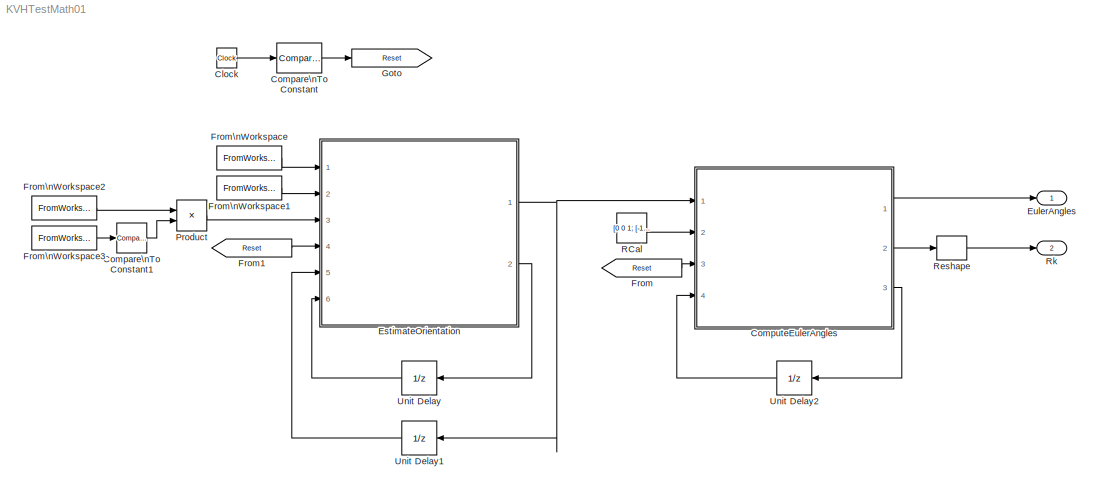
MODEL KVHTestMath01
KIND model
CONFIG InitFcn = T = (0:length(DeltaAngle)-1)'*0.001;\nTDeltaAngle = [T DeltaAngle];\nTAcceleration = [T Acceleration];\nTStatus = [T Status];\nTValid = [T Valid];\n
CONFIG StopFcn = ZYX = yout(:,1:3);\nR=yout(:,4:12);\n\nfigure(1);\nplot(T,ZYX*180/pi); hold on;\nplot(T,Status, 'm'); hold off;\n
BLOCK [Clock] Clock
  SID = 15
BLOCK [Reference] Compare\nTo Constant  REF=simulink/Logic and Bit\nOperations/Compare\nTo Constant
  OutDataTypeStr = uint8
  Ports = [1, 1]
  SID = 17
  SourceBlock = simulink/Logic and Bit\nOperations/Compare\nTo Constant
  SourceType = Compare To Constant
  ZeroCross = on
  const = 0.2
  relop = <
BLOCK [Reference] Compare\nTo Constant1  REF=simulink/Logic and Bit\nOperations/Compare\nTo Constant
  OutDataTypeStr = uint8
  Ports = [1, 1]
  SID = 23
  SourceBlock = simulink/Logic and Bit\nOperations/Compare\nTo Constant
  SourceType = Compare To Constant
  ZeroCross = on
  const = 1
  relop = ==
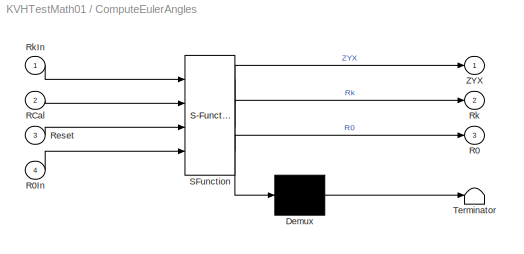
BLOCK [SubSystem] ComputeEulerAngles
  ErrorFcn = Stateflow.Translate.translate
  FunctionWithSeparateData = off
  MaskDescription = Embedded MATLAB block
  MaskDisplay = bgColor = Simulink.Root.ColorString2Rgb(get_param(gcbh, 'BackgroundColor')); image(imread('private/eml_membrane_16.png','png','BackgroundColor',bgColor(1:3)),'center'); disp([10 10 'fcn']);
  MaskHideContents = off
  MaskIconFrame = on
  MaskIconOpaque = off
  MaskIconRotate = none
  MaskIconUnits = normalized
  MaskPortRotate = default
  MaskSelfModifiable = on
  MaskType = Stateflow
  MinAlgLoopOccurrences = off
  Opaque = off
  PermitHierarchicalResolution = ExplicitOnly
  Ports = [4, 3]
  PropExecContextOutsideSubsystem = off
  RTWSystemCode = Auto
  RequestExecContextInheritance = off
  SFBlockType = MATLAB Function
  SID = 1
  TreatAsAtomicUnit = on
BLOCK [Demux] ComputeEulerAngles/ Demux 
  Outputs = 1
  Ports = [1, 1]
  SID = 1::20
BLOCK [S-Function] ComputeEulerAngles/ SFunction 
  EnableBusSupport = on
  FunctionName = sf_sfun
  PortCounts = [4 4]
  Ports = [4, 4]
  SID = 1::19
  Tag = Stateflow S-Function KVHTestMath01 1
BLOCK [Terminator] ComputeEulerAngles/ Terminator 
  SID = 1::22
BLOCK [Outport] ComputeEulerAngles/R0
  IconDisplay = Port number
  Port = 3
  SID = 1::32
BLOCK [Inport] ComputeEulerAngles/R0In
  IconDisplay = Port number
  Port = 4
  SID = 1::30
BLOCK [Inport] ComputeEulerAngles/RCal
  IconDisplay = Port number
  Port = 2
  SID = 1::1
BLOCK [Inport] ComputeEulerAngles/Reset
  IconDisplay = Port number
  Port = 3
  SID = 1::24
BLOCK [Outport] ComputeEulerAngles/Rk
  IconDisplay = Port number
  Port = 2
  SID = 1::34
BLOCK [Inport] ComputeEulerAngles/RkIn
  IconDisplay = Port number
  SID = 1::33
BLOCK [Outport] ComputeEulerAngles/ZYX
  IconDisplay = Port number
  SID = 1::27
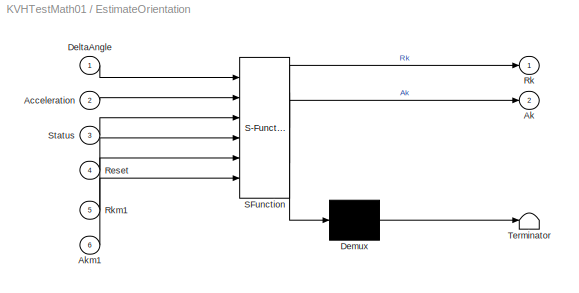
BLOCK [SubSystem] EstimateOrientation
  ErrorFcn = Stateflow.Translate.translate
  FunctionWithSeparateData = off
  MaskDescription = Embedded MATLAB block
  MaskDisplay = bgColor = Simulink.Root.ColorString2Rgb(get_param(gcbh, 'BackgroundColor')); image(imread('private/eml_membrane_16.png','png','BackgroundColor',bgColor(1:3)),'center'); disp([10 10 'fcn']);
  MaskHideContents = off
  MaskIconFrame = on
  MaskIconOpaque = off
  MaskIconRotate = none
  MaskIconUnits = normalized
  MaskPortRotate = default
  MaskSelfModifiable = on
  MaskType = Stateflow
  MinAlgLoopOccurrences = off
  Opaque = off
  PermitHierarchicalResolution = ExplicitOnly
  Ports = [6, 2]
  PropExecContextOutsideSubsystem = off
  RTWSystemCode = Auto
  RequestExecContextInheritance = off
  SFBlockType = MATLAB Function
  SID = 2
  TreatAsAtomicUnit = on
BLOCK [Demux] EstimateOrientation/ Demux 
  Outputs = 1
  Ports = [1, 1]
  SID = 2::20
BLOCK [S-Function] EstimateOrientation/ SFunction 
  EnableBusSupport = on
  FunctionName = sf_sfun
  PortCounts = [6 3]
  Ports = [6, 3]
  SID = 2::19
  Tag = Stateflow S-Function KVHTestMath01 2
BLOCK [Terminator] EstimateOrientation/ Terminator 
  SID = 2::22
BLOCK [Inport] EstimateOrientation/Acceleration
  IconDisplay = Port number
  Port = 2
  SID = 2::1
BLOCK [Outport] EstimateOrientation/Ak
  IconDisplay = Port number
  Port = 2
  SID = 2::27
BLOCK [Inport] EstimateOrientation/Akm1
  IconDisplay = Port number
  Port = 6
  SID = 2::26
BLOCK [Inport] EstimateOrientation/DeltaAngle
  IconDisplay = Port number
  SID = 2::23
BLOCK [Inport] EstimateOrientation/Reset
  IconDisplay = Port number
  Port = 4
  SID = 2::24
BLOCK [Outport] EstimateOrientation/Rk
  IconDisplay = Port number
  SID = 2::5
BLOCK [Inport] EstimateOrientation/Rkm1
  IconDisplay = Port number
  Port = 5
  SID = 2::25
BLOCK [Inport] EstimateOrientation/Status
  IconDisplay = Port number
  Port = 3
  SID = 2::28
BLOCK [Outport] EulerAngles
  IconDisplay = Port number
  SID = 7
BLOCK [From] From
  GotoTag = Reset
  SID = 9
BLOCK [From] From1
  GotoTag = Reset
  SID = 11
BLOCK [FromWorkspace] From\nWorkspace
  Interpolate = off
  OutputAfterFinalValue = Holding final value
  SID = 12
  SampleTime = 0
  VariableName = TDeltaAngle
  ZeroCross = on
BLOCK [FromWorkspace] From\nWorkspace1
  Interpolate = off
  OutputAfterFinalValue = Holding final value
  SID = 13
  SampleTime = 0
  VariableName = TAcceleration
  ZeroCross = on
BLOCK [FromWorkspace] From\nWorkspace2
  Interpolate = off
  OutputAfterFinalValue = Holding final value
  SID = 18
  SampleTime = 0
  VariableName = TStatus
  ZeroCross = on
BLOCK [FromWorkspace] From\nWorkspace3
  Interpolate = off
  OutputAfterFinalValue = Holding final value
  SID = 21
  SampleTime = 0
  VariableName = TValid
  ZeroCross = on
BLOCK [Goto] Goto
  GotoTag = Reset
  SID = 10
BLOCK [Product] Product
  InputSameDT = off
  OutDataTypeStr = Inherit: Inherit via internal rule
  Ports = [2, 1]
  SID = 22
  SaturateOnIntegerOverflow = off
BLOCK [Constant] RCal
  SID = 3
  Value = [0 0 1; [-1 -1; 1 -1]/sqrt(2) [0; 0]]'
BLOCK [Reshape] Reshape
  Ports = [1, 1]
  SID = 20
BLOCK [Outport] Rk
  IconDisplay = Port number
  Port = 2
  SID = 8
BLOCK [UnitDelay] Unit Delay
  InputProcessing = Elements as channels (sample based)
  SID = 4
  SampleTime = -1
  X0 = [0; 0; 0]
BLOCK [UnitDelay] Unit Delay1
  InputProcessing = Elements as channels (sample based)
  SID = 5
  SampleTime = -1
  X0 = zeros(3,3)
BLOCK [UnitDelay] Unit Delay2
  InputProcessing = Elements as channels (sample based)
  SID = 6
  SampleTime = -1
  X0 = zeros(3,3)
LINE Clock:1 -> Compare\nTo Constant:1
LINE Compare\nTo Constant1:1 -> Product:2
LINE Compare\nTo Constant:1 -> Goto:1
LINE ComputeEulerAngles/ Demux :1 -> ComputeEulerAngles/ Terminator :1
LINE ComputeEulerAngles/ SFunction :1 -> ComputeEulerAngles/ Demux :1
LINE ComputeEulerAngles/ SFunction :2 -> ComputeEulerAngles/ZYX:1
LINE ComputeEulerAngles/ SFunction :3 -> ComputeEulerAngles/Rk:1
LINE ComputeEulerAngles/ SFunction :4 -> ComputeEulerAngles/R0:1
LINE ComputeEulerAngles/R0In:1 -> ComputeEulerAngles/ SFunction :4
LINE ComputeEulerAngles/RCal:1 -> ComputeEulerAngles/ SFunction :2
LINE ComputeEulerAngles/Reset:1 -> ComputeEulerAngles/ SFunction :3
LINE ComputeEulerAngles/RkIn:1 -> ComputeEulerAngles/ SFunction :1
LINE ComputeEulerAngles:1 -> EulerAngles:1
LINE ComputeEulerAngles:2 -> Reshape:1
LINE ComputeEulerAngles:3 -> Unit Delay2:1
LINE EstimateOrientation/ Demux :1 -> EstimateOrientation/ Terminator :1
LINE EstimateOrientation/ SFunction :1 -> EstimateOrientation/ Demux :1
LINE EstimateOrientation/ SFunction :2 -> EstimateOrientation/Rk:1
LINE EstimateOrientation/ SFunction :3 -> EstimateOrientation/Ak:1
LINE EstimateOrientation/Acceleration:1 -> EstimateOrientation/ SFunction :2
LINE EstimateOrientation/Akm1:1 -> EstimateOrientation/ SFunction :6
LINE EstimateOrientation/DeltaAngle:1 -> EstimateOrientation/ SFunction :1
LINE EstimateOrientation/Reset:1 -> EstimateOrientation/ SFunction :4
LINE EstimateOrientation/Rkm1:1 -> EstimateOrientation/ SFunction :5
LINE EstimateOrientation/Status:1 -> EstimateOrientation/ SFunction :3
NET EstimateOrientation:1 -> ComputeEulerAngles:1, Unit Delay1:1
LINE EstimateOrientation:2 -> Unit Delay:1
LINE From1:1 -> EstimateOrientation:4
LINE From:1 -> ComputeEulerAngles:3
LINE From\nWorkspace1:1 -> EstimateOrientation:2
LINE From\nWorkspace2:1 -> Product:1
LINE From\nWorkspace3:1 -> Compare\nTo Constant1:1
LINE From\nWorkspace:1 -> EstimateOrientation:1
LINE Product:1 -> EstimateOrientation:3
LINE RCal:1 -> ComputeEulerAngles:2
LINE Reshape:1 -> Rk:1
LINE Unit Delay1:1 -> EstimateOrientation:5
LINE Unit Delay2:1 -> ComputeEulerAngles:4
LINE Unit Delay:1 -> EstimateOrientation:6
note: NET lines group one-source signal fan-out (src -> all destinations, sorted); 1:1 wires keep LINE
CHART ComputeEulerAngles states=1 transitions=1
  STATE_LABEL 'eML_blk_kernel()'
CHART EstimateOrientation states=1 transitions=1
  STATE_LABEL 'eML_blk_kernel()'
